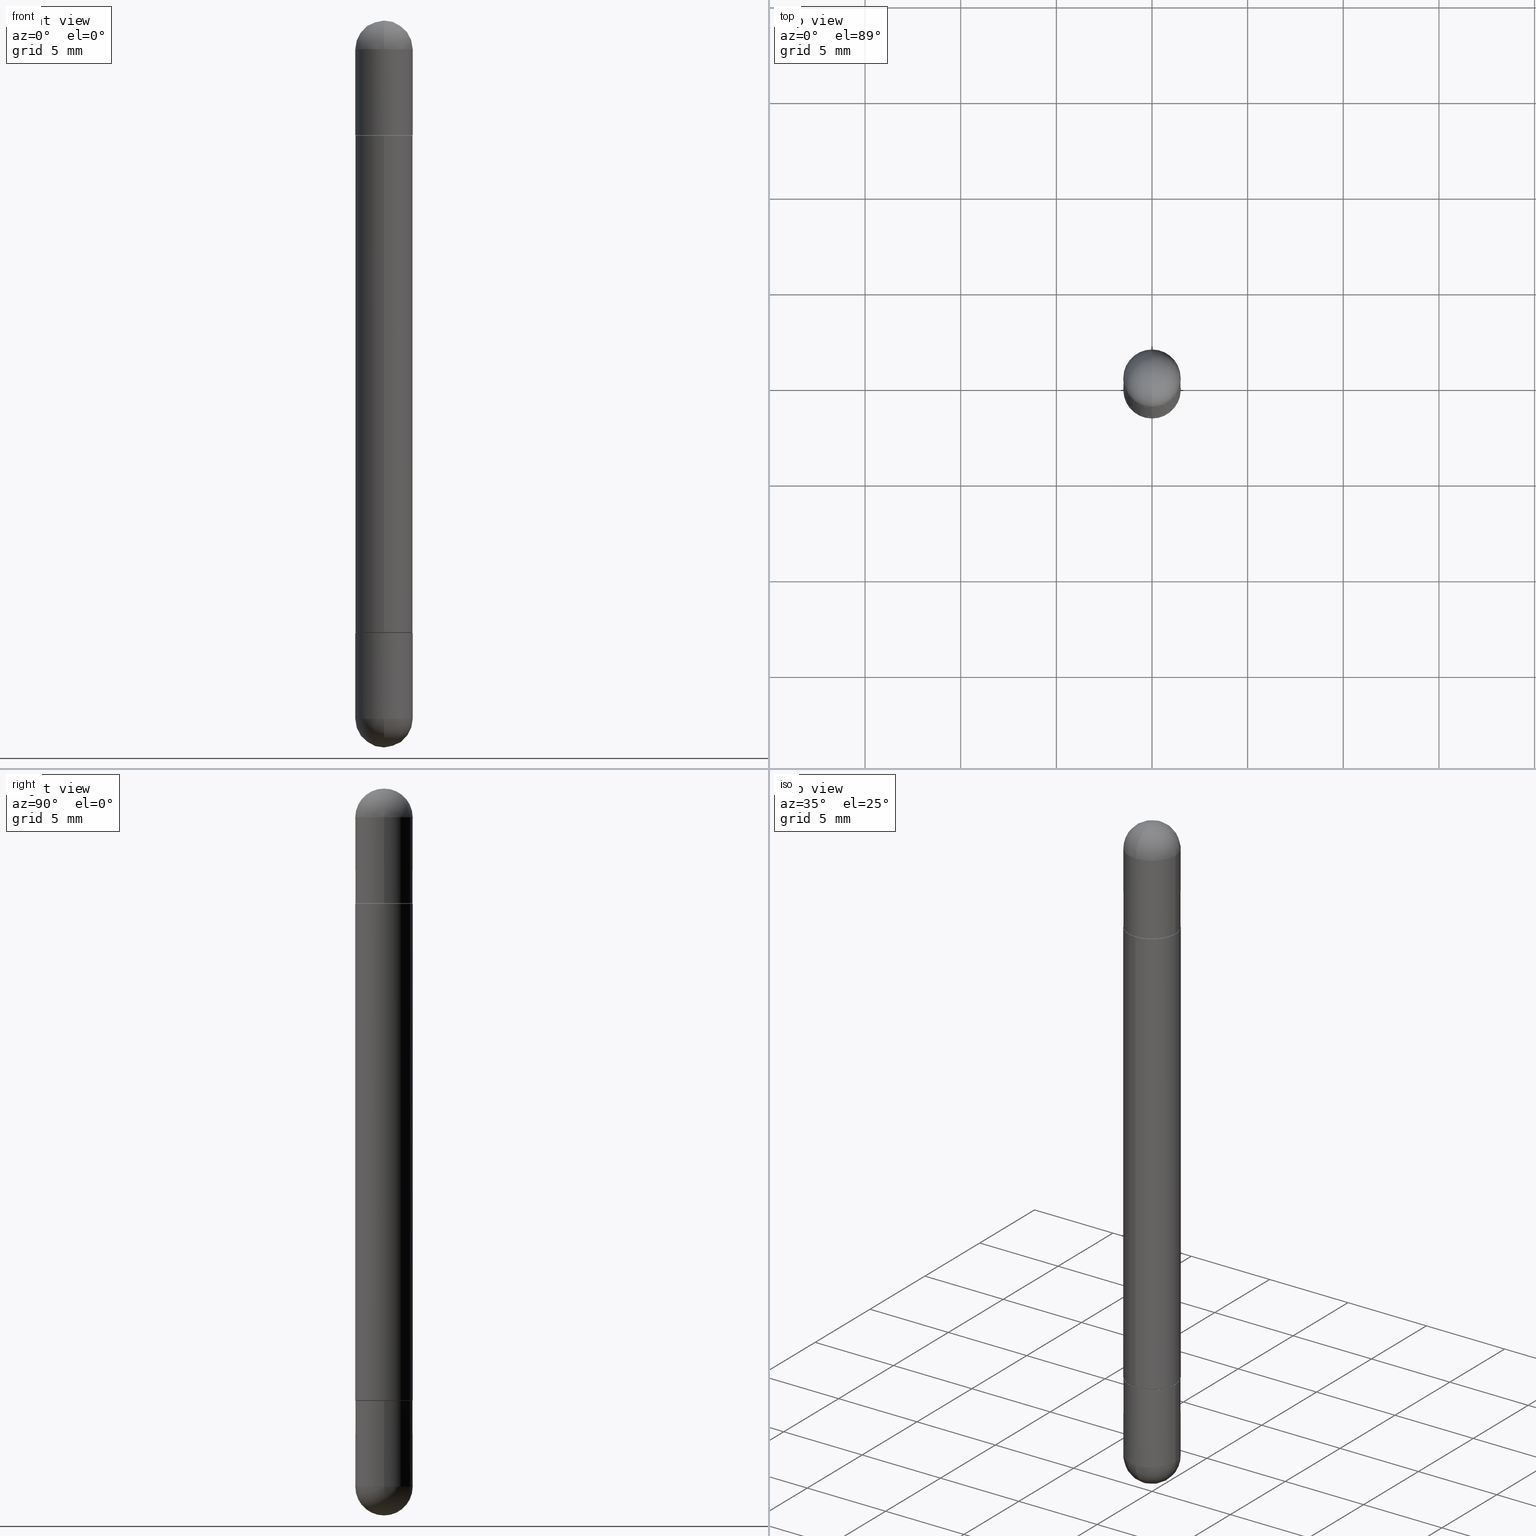
[diagram: canonical four-view strip — front | top / right | iso, engineering-drawing reading convention]
A machine part, canonical four-view strip (front | top / right | iso — engineering-drawing reading convention). The complete STEP part file that produces these views, byte-faithful:
ISO-10303-21;
HEADER;
FILE_DESCRIPTION (( 'STEP AP203' ),
    '1' );
FILE_NAME ('49098.STEP',
    '2024-03-01T12:52:08',
    ( '' ),
    ( '' ),
    'SwSTEP 2.0',
    'SolidWorks 2023',
    '' );
FILE_SCHEMA (( 'CONFIG_CONTROL_DESIGN' ));
ENDSEC;

DATA;
#1 = ORIENTED_EDGE ( 'NONE', *, *, #572, .F. ) ;
#2 = ORIENTED_EDGE ( 'NONE', *, *, #53, .T. ) ;
#3 = CARTESIAN_POINT ( 'NONE',  ( 3.086423063707921793E-29, -4.391217290786669533E-15, -0.2362000000000003264 ) ) ;
#4 = EDGE_LOOP ( 'NONE', ( #5, #637, #101, #326 ) ) ;
#5 = ORIENTED_EDGE ( 'NONE', *, *, #253, .F. ) ;
#6 = CARTESIAN_POINT ( 'NONE',  ( 3.514260947928350449E-29, -5.017433257984542594E-15, -0.05905000000000028976 ) ) ;
#7 = ORIENTED_EDGE ( 'NONE', *, *, #604, .F. ) ;
#8 = DIRECTION ( 'NONE',  ( -2.445468806185136597E-29, 3.491481338843145583E-15, 1.000000000000000000 ) ) ;
#9 = DATE_TIME_ROLE ( 'creation_date' ) ;
#10 = EDGE_LOOP ( 'NONE', ( #192, #484, #132, #392, #664 ) ) ;
#11 = AXIS2_PLACEMENT_3D ( 'NONE', #296, #573, #241 ) ;
#12 = AXIS2_PLACEMENT_3D ( 'NONE', #570, #566, #62 ) ;
#13 = EDGE_CURVE ( 'NONE', #195, #502, #331, .T. ) ;
#14 = CARTESIAN_POINT ( 'NONE',  ( 4.051124067684279981E-16, 0.05904999999999575866, -1.258900000000000352 ) ) ;
#15 = FACE_OUTER_BOUND ( 'NONE', #42, .T. ) ;
#16 = EDGE_CURVE ( 'NONE', #68, #246, #158, .T. ) ;
#17 = PERSON_AND_ORGANIZATION ( #415, #540 ) ;
#18 = DIRECTION ( 'NONE',  ( 1.000000000000000000, -6.982962677686270655E-15, 0.000000000000000000 ) ) ;
#19 = CARTESIAN_POINT ( 'NONE',  ( 4.124700581087690039E-16, 0.05804999999999561899, -1.259900000000000020 ) ) ;
#20 = DIRECTION ( 'NONE',  ( 1.000000000000000000, -6.982962677686266711E-15, 0.000000000000000000 ) ) ;
#21 = DIRECTION ( 'NONE',  ( 2.438088387897960049E-29, -3.491481338843145188E-15, 1.000000000000000000 ) ) ;
#22 = CONICAL_SURFACE ( 'NONE', #11, 0.05805000000000000437, 0.7853981633976190313 ) ;
#23 = AXIS2_PLACEMENT_3D ( 'NONE', #356, #170, #539 ) ;
#24 = DIRECTION ( 'NONE',  ( 2.449736537588635656E-29, -3.485369704569148359E-15, 1.000000000000000000 ) ) ;
#25 = EDGE_CURVE ( 'NONE', #614, #249, #470, .T. ) ;
#26 = CIRCLE ( 'NONE', #666, 0.05905000000000025506 ) ;
#27 = CARTESIAN_POINT ( 'NONE',  ( 0.000000000000000000, 0.000000000000000000, -1.496100000000000207 ) ) ;
#28 = EDGE_CURVE ( 'NONE', #756, #238, #709, .T. ) ;
#29 = ORIENTED_EDGE ( 'NONE', *, *, #263, .F. ) ;
#30 = DIRECTION ( 'NONE',  ( 6.982962677686265922E-15, 1.000000000000000000, -4.626330217890349615E-15 ) ) ;
#31 = DIRECTION ( 'NONE',  ( -1.000000000000000000, 6.982962677686265922E-15, -4.876176775795935793E-29 ) ) ;
#32 = DIRECTION ( 'NONE',  ( -6.982962677686265922E-15, -1.000000000000000000, -4.626330217890363025E-15 ) ) ;
#33 = CARTESIAN_POINT ( 'NONE',  ( -4.053609834396569077E-16, -0.05805000000000438976, -0.2362000000000005484 ) ) ;
#34 = DIRECTION ( 'NONE',  ( -1.000000000000000000, 6.982962677686265922E-15, -4.883557194083112340E-29 ) ) ;
#35 = CARTESIAN_POINT ( 'NONE',  ( 0.05905000000000001914, -5.120519244513884944E-15, -0.05905000000000028976 ) ) ;
#36 = UNCERTAINTY_MEASURE_WITH_UNIT (LENGTH_MEASURE( 1.000000000000000082E-05 ), #179, 'distance_accuracy_value', 'NONE');
#37 = CARTESIAN_POINT ( 'NONE',  ( 3.183141170014464762E-29, -5.491615626124592102E-15, -1.437049999999999939 ) ) ;
#38 = DIRECTION ( 'NONE',  ( -6.982962677686265922E-15, -1.000000000000000000, -3.469747663417768719E-15 ) ) ;
#39 = VERTEX_POINT ( 'NONE', #642 ) ;
#40 = AXIS2_PLACEMENT_3D ( 'NONE', #531, #41, #801 ) ;
#41 = DIRECTION ( 'NONE',  ( -1.000000000000000000, 6.982962677686265922E-15, 4.883557194083112340E-29 ) ) ;
#42 = EDGE_LOOP ( 'NONE', ( #474, #628 ) ) ;
#43 = AXIS2_PLACEMENT_3D ( 'NONE', #97, #355, #289 ) ;
#44 = FACE_OUTER_BOUND ( 'NONE', #190, .T. ) ;
#45 = CARTESIAN_POINT ( 'NONE',  ( 1.832525416943179176E-29, -2.607230807502951739E-15, -0.7480500000000001037 ) ) ;
#46 = CC_DESIGN_PERSON_AND_ORGANIZATION_ASSIGNMENT ( #764, #689, ( #346 ) ) ;
#47 = CARTESIAN_POINT ( 'NONE',  ( 4.160227717875699517E-16, 0.05804999999999561899, -1.259900000000000020 ) ) ;
#48 = DIRECTION ( 'NONE',  ( 1.000000000000000000, -6.982962677686270655E-15, 0.000000000000000000 ) ) ;
#49 = CALENDAR_DATE ( 2024, 1, 3 ) ;
#50 = CARTESIAN_POINT ( 'NONE',  ( 0.000000000000000000, 0.000000000000000000, -0.7480500000000001037 ) ) ;
#51 = DIRECTION ( 'NONE',  ( -0.000000000000000000, -0.000000000000000000, -1.000000000000000000 ) ) ;
#52 = VERTEX_POINT ( 'NONE', #14 ) ;
#53 = EDGE_CURVE ( 'NONE', #208, #308, #108, .T. ) ;
#54 = CARTESIAN_POINT ( 'NONE',  ( -4.195754854663065087E-16, -0.05905000000000539678, -1.437049999999999716 ) ) ;
#55 = CIRCLE ( 'NONE', #622, 0.05905000000000014404 ) ;
#56 = VECTOR ( 'NONE', #714, 39.37007874015748143 ) ;
#57 = APPROVAL_STATUS ( 'not_yet_approved' ) ;
#58 = ORIENTED_EDGE ( 'NONE', *, *, #630, .T. ) ;
#59 = AXIS2_PLACEMENT_3D ( 'NONE', #350, #363, #295 ) ;
#60 = ORIENTED_EDGE ( 'NONE', *, *, #16, .T. ) ;
#61 = EDGE_CURVE ( 'NONE', #260, #323, #216, .T. ) ;
#62 = DIRECTION ( 'NONE',  ( 1.000000000000000000, -6.982962677686270655E-15, 0.000000000000000000 ) ) ;
#63 = VERTEX_POINT ( 'NONE', #89 ) ;
#64 = PRODUCT_RELATED_PRODUCT_CATEGORY ( 'detail', '', ( #127 ) ) ;
#65 = CIRCLE ( 'NONE', #242, 0.05905000000000014404 ) ;
#66 = ORIENTED_EDGE ( 'NONE', *, *, #696, .F. ) ;
#67 = AXIS2_PLACEMENT_3D ( 'NONE', #45, #425, #264 ) ;
#68 = VERTEX_POINT ( 'NONE', #683 ) ;
#69 = VECTOR ( 'NONE', #624, 39.37007874015748143 ) ;
#70 = DIRECTION ( 'NONE',  ( -4.937700262165390546E-15, -0.7071067811866658115, 0.7071067811864292230 ) ) ;
#71 = DIRECTION ( 'NONE',  ( 2.445468806185136597E-29, -3.491481338843145583E-15, 1.000000000000000000 ) ) ;
#72 = DIRECTION ( 'NONE',  ( -6.982962677686266711E-15, -1.000000000000000000, 0.000000000000000000 ) ) ;
#73 = LINE ( 'NONE', #765, #69 ) ;
#74 = COORDINATED_UNIVERSAL_TIME_OFFSET ( 5, 0, .BEHIND. ) ;
#75 = SPHERICAL_SURFACE ( 'NONE', #576, 0.05905000000000025506 ) ;
#76 = EDGE_CURVE ( 'NONE', #181, #323, #173, .T. ) ;
#77 = DIRECTION ( 'NONE',  ( -2.449736537588635656E-29, 3.485369704569148359E-15, 1.000000000000000000 ) ) ;
#78 = DIRECTION ( 'NONE',  ( 6.860497997771530774E-15, 1.000000000000000000, 0.000000000000000000 ) ) ;
#79 = FACE_OUTER_BOUND ( 'NONE', #607, .T. ) ;
#80 = CC_DESIGN_PERSON_AND_ORGANIZATION_ASSIGNMENT ( #815, #759, ( #808 ) ) ;
#81 = DIRECTION ( 'NONE',  ( -6.982962677686265922E-15, -1.000000000000000000, -3.485369704569147964E-15 ) ) ;
#83 = EDGE_CURVE ( 'NONE', #181, #246, #277, .T. ) ;
#82 = AXIS2_PLACEMENT_3D ( 'NONE', #6, #204, #259 ) ;
#84 = AXIS2_PLACEMENT_3D ( 'NONE', #748, #310, #359 ) ;
#85 = DIRECTION ( 'NONE',  ( -6.982962677686265922E-15, -1.000000000000000000, 4.706025828879006204E-15 ) ) ;
#86 = DIRECTION ( 'NONE',  ( -1.000000000000000000, 0.000000000000000000, 0.000000000000000000 ) ) ;
#87 = DIRECTION ( 'NONE',  ( -2.445468806185136597E-29, 3.491481338843145583E-15, 1.000000000000000000 ) ) ;
#88 = AXIS2_PLACEMENT_3D ( 'NONE', #452, #398, #736 ) ;
#89 = CARTESIAN_POINT ( 'NONE',  ( 4.016821577695545181E-16, 0.05804999999999561899, -0.2362000000000001321 ) ) ;
#90 = AXIS2_PLACEMENT_3D ( 'NONE', #731, #348, #48 ) ;
#91 = CARTESIAN_POINT ( 'NONE',  ( 3.514260947928350449E-29, -5.017433257984542594E-15, -0.05905000000000028976 ) ) ;
#92 = SPHERICAL_SURFACE ( 'NONE', #692, 0.05905000000000025506 ) ;
#93 = CYLINDRICAL_SURFACE ( 'NONE', #59, 0.05905000000000001914 ) ;
#94 = CARTESIAN_POINT ( 'NONE',  ( 0.05905000000000001914, -4.123439461173741806E-16, -1.496100000000000207 ) ) ;
#95 = MECHANICAL_CONTEXT ( 'NONE', #239, 'mechanical' ) ;
#96 = CARTESIAN_POINT ( 'NONE',  ( 3.514260947928350449E-29, -5.017433257984542594E-15, -0.05905000000000028976 ) ) ;
#97 = CARTESIAN_POINT ( 'NONE',  ( 3.086423063707921793E-29, -4.391217290786669533E-15, -0.2362000000000003264 ) ) ;
#98 = DIRECTION ( 'NONE',  ( 1.000000000000000000, -6.982962677686270655E-15, 0.000000000000000000 ) ) ;
#99 = FACE_OUTER_BOUND ( 'NONE', #128, .T. ) ;
#100 = VERTEX_POINT ( 'NONE', #105 ) ;
#101 = ORIENTED_EDGE ( 'NONE', *, *, #234, .T. ) ;
#102 = CARTESIAN_POINT ( 'NONE',  ( 3.086423063707921793E-29, -4.391217290786669533E-15, -0.2362000000000003264 ) ) ;
#103 = ORIENTED_EDGE ( 'NONE', *, *, #586, .F. ) ;
#104 = FACE_OUTER_BOUND ( 'NONE', #810, .T. ) ;
#105 = CARTESIAN_POINT ( 'NONE',  ( -4.051124067683763770E-16, -0.05905000000000539678, -0.05905000000000049099 ) ) ;
#106 = EDGE_CURVE ( 'NONE', #39, #332, #564, .T. ) ;
#107 = VECTOR ( 'NONE', #483, 39.37007874015748143 ) ;
#108 = CIRCLE ( 'NONE', #757, 0.05905000000000025506 ) ;
#109 = FACE_OUTER_BOUND ( 'NONE', #629, .T. ) ;
#110 = AXIS2_PLACEMENT_3D ( 'NONE', #352, #610, #742 ) ;
#111 = DIRECTION ( 'NONE',  ( -6.982962677686265922E-15, -1.000000000000000000, -3.529519371659254456E-15 ) ) ;
#112 = AXIS2_PLACEMENT_3D ( 'NONE', #558, #475, #482 ) ;
#113 = DIRECTION ( 'NONE',  ( 1.000000000000000000, -6.982962677686270655E-15, 0.000000000000000000 ) ) ;
#114 = APPLICATION_CONTEXT ( 'configuration controlled 3d designs of mechanical parts and assemblies' ) ;
#115 = LINE ( 'NONE', #617, #728 ) ;
#116 = ORIENTED_EDGE ( 'NONE', *, *, #598, .T. ) ;
#117 = CARTESIAN_POINT ( 'NONE',  ( -4.123439461173500217E-16, -0.05905000000000269061, -0.7480500000000001037 ) ) ;
#118 = CARTESIAN_POINT ( 'NONE',  ( 4.016821577695545181E-16, 0.05804999999999561899, -0.2362000000000001321 ) ) ;
#119 = ORIENTED_EDGE ( 'NONE', *, *, #217, .T. ) ;
#120 = ORIENTED_EDGE ( 'NONE', *, *, #794, .F. ) ;
#121 = ADVANCED_FACE ( 'NONE', ( #183 ), #468, .F. ) ;
#122 = CARTESIAN_POINT ( 'NONE',  ( 0.05905000000000001914, -4.811261284925853162E-15, -0.2362000000000003264 ) ) ;
#123 = AXIS2_PLACEMENT_3D ( 'NONE', #599, #285, #169 ) ;
#124 = AXIS2_PLACEMENT_3D ( 'NONE', #701, #505, #391 ) ;
#125 = FACE_OUTER_BOUND ( 'NONE', #389, .T. ) ;
#126 = EDGE_LOOP ( 'NONE', ( #201, #782, #632, #763, #146 ) ) ;
#127 = PRODUCT ( '49098', '49098', '', ( #95 ) ) ;
#128 = EDGE_LOOP ( 'NONE', ( #1, #375, #762, #362 ) ) ;
#129 = APPROVAL ( #130, 'UNSPECIFIED' ) ;
#130 = APPROVAL_STATUS ( 'not_yet_approved' ) ;
#131 = CARTESIAN_POINT ( 'NONE',  ( 0.000000000000000000, 0.000000000000000000, 0.000000000000000000 ) ) ;
#132 = ORIENTED_EDGE ( 'NONE', *, *, #281, .T. ) ;
#133 = ORIENTED_EDGE ( 'NONE', *, *, #641, .F. ) ;
#134 = DIRECTION ( 'NONE',  ( 4.851104656541791790E-15, 0.7071067811866706965, -0.7071067811864243380 ) ) ;
#135 = CIRCLE ( 'NONE', #589, 0.05905000000000001914 ) ;
#136 = DIRECTION ( 'NONE',  ( -2.449736537588635656E-29, 3.485369704569147964E-15, -1.000000000000000000 ) ) ;
#137 = CARTESIAN_POINT ( 'NONE',  ( -4.053609834396569077E-16, -0.05805000000000438976, -0.2362000000000005484 ) ) ;
#138 = LOCAL_TIME ( 7, 52, 8.000000000000000000, #147 ) ;
#139 = FACE_OUTER_BOUND ( 'NONE', #172, .T. ) ;
#140 = CARTESIAN_POINT ( 'NONE',  ( 3.183141170014464762E-29, -5.491615626124592102E-15, -0.05905000000000028976 ) ) ;
#141 = ORIENTED_EDGE ( 'NONE', *, *, #106, .F. ) ;
#142 = LINE ( 'NONE', #19, #395 ) ;
#143 = ADVANCED_FACE ( 'NONE', ( #164 ), #371, .T. ) ;
#144 = EDGE_CURVE ( 'NONE', #378, #308, #290, .T. ) ;
#145 = LINE ( 'NONE', #399, #56 ) ;
#146 = ORIENTED_EDGE ( 'NONE', *, *, #83, .T. ) ;
#147 = COORDINATED_UNIVERSAL_TIME_OFFSET ( 5, 0, .BEHIND. ) ;
#148 = DIRECTION ( 'NONE',  ( -1.000000000000000000, 6.982962677686265922E-15, 4.876176775795935793E-29 ) ) ;
#149 = AXIS2_PLACEMENT_3D ( 'NONE', #96, #370, #735 ) ;
#150 = ADVANCED_FACE ( 'NONE', ( #609 ), #724, .T. ) ;
#151 = ADVANCED_FACE ( 'NONE', ( #479 ), #282, .F. ) ;
#152 = ADVANCED_FACE ( 'NONE', ( #413 ), #351, .T. ) ;
#153 = AXIS2_PLACEMENT_3D ( 'NONE', #493, #306, #770 ) ;
#154 = ORIENTED_EDGE ( 'NONE', *, *, #494, .F. ) ;
#155 = CARTESIAN_POINT ( 'NONE',  ( 3.183141170014464762E-29, -5.491615626124592102E-15, -0.05905000000000028976 ) ) ;
#156 = ORIENTED_EDGE ( 'NONE', *, *, #630, .F. ) ;
#157 = DIRECTION ( 'NONE',  ( 2.449736537588635656E-29, -3.485369704569148359E-15, 1.000000000000000000 ) ) ;
#158 = CIRCLE ( 'NONE', #225, 0.05905000000000025506 ) ;
#159 = CARTESIAN_POINT ( 'NONE',  ( 3.086423063707921793E-29, -4.391217290786669533E-15, -0.2362000000000003264 ) ) ;
#160 = AXIS2_PLACEMENT_3D ( 'NONE', #605, #739, #685 ) ;
#161 = LOCAL_TIME ( 7, 52, 8.000000000000000000, #615 ) ;
#162 = DIRECTION ( 'NONE',  ( 2.438088387897960049E-29, -3.491481338843145188E-15, -1.000000000000000000 ) ) ;
#163 = ADVANCED_FACE ( 'NONE', ( #533 ), #320, .T. ) ;
#164 = FACE_OUTER_BOUND ( 'NONE', #802, .T. ) ;
#165 = DIRECTION ( 'NONE',  ( -2.445468806185136597E-29, 3.491481338843145583E-15, -1.000000000000000000 ) ) ;
#166 = APPROVAL_STATUS ( 'not_yet_approved' ) ;
#167 = EDGE_CURVE ( 'NONE', #332, #39, #266, .T. ) ;
#168 = FACE_OUTER_BOUND ( 'NONE', #773, .T. ) ;
#169 = DIRECTION ( 'NONE',  ( 6.982962677686265922E-15, 1.000000000000000000, 3.469747663417762014E-15 ) ) ;
#170 = DIRECTION ( 'NONE',  ( -2.449736537588635656E-29, 3.485369704569148359E-15, -1.000000000000000000 ) ) ;
#171 = APPROVAL_ROLE ( '' ) ;
#172 = EDGE_LOOP ( 'NONE', ( #512, #58, #591, #205 ) ) ;
#173 = LINE ( 'NONE', #667, #107 ) ;
#174 = CIRCLE ( 'NONE', #496, 0.05905000000000001914 ) ;
#175 = COORDINATED_UNIVERSAL_TIME_OFFSET ( 5, 0, .BEHIND. ) ;
#176 = ADVANCED_FACE ( 'NONE', ( #44 ), #602, .T. ) ;
#177 = FACE_OUTER_BOUND ( 'NONE', #198, .T. ) ;
#178 = ORIENTED_EDGE ( 'NONE', *, *, #287, .T. ) ;
#179 =( CONVERSION_BASED_UNIT ( 'INCH', #396 ) LENGTH_UNIT ( ) NAMED_UNIT ( #674 ) );
#180 = CARTESIAN_POINT ( 'NONE',  ( 3.183141170014464762E-29, -5.491615626124592102E-15, -0.05905000000000028976 ) ) ;
#181 = VERTEX_POINT ( 'NONE', #538 ) ;
#182 = CC_DESIGN_APPROVAL ( #210, ( #346 ) ) ;
#183 = FACE_OUTER_BOUND ( 'NONE', #284, .T. ) ;
#184 = ADVANCED_FACE ( 'NONE', ( #230 ), #22, .T. ) ;
#185 = DIRECTION ( 'NONE',  ( -6.982962677686265922E-15, -1.000000000000000000, 3.485369704569147964E-15 ) ) ;
#186 = ORIENTED_EDGE ( 'NONE', *, *, #678, .T. ) ;
#187 = PERSON_AND_ORGANIZATION_ROLE ( 'design_owner' ) ;
#188 = VERTEX_POINT ( 'NONE', #33 ) ;
#189 = DIRECTION ( 'NONE',  ( 2.449736537588635656E-29, -3.485369704569148359E-15, 1.000000000000000000 ) ) ;
#190 = EDGE_LOOP ( 'NONE', ( #747, #448, #626, #66 ) ) ;
#191 = AXIS2_PLACEMENT_3D ( 'NONE', #424, #796, #113 ) ;
#192 = ORIENTED_EDGE ( 'NONE', *, *, #367, .F. ) ;
#193 = CIRCLE ( 'NONE', #401, 0.05905000000000008159 ) ;
#194 = DIRECTION ( 'NONE',  ( -6.982962677686265922E-15, -1.000000000000000000, -3.529519371659254456E-15 ) ) ;
#195 = VERTEX_POINT ( 'NONE', #118 ) ;
#196 = CONICAL_SURFACE ( 'NONE', #772, 0.05805000000000000437, 0.7853981633976190313 ) ;
#197 = DATE_AND_TIME ( #569, #652 ) ;
#198 = EDGE_LOOP ( 'NONE', ( #224, #780 ) ) ;
#199 = ADVANCED_FACE ( 'NONE', ( #790 ), #588, .T. ) ;
#200 = EDGE_LOOP ( 'NONE', ( #620, #793 ) ) ;
#201 = ORIENTED_EDGE ( 'NONE', *, *, #696, .T. ) ;
#202 = EDGE_CURVE ( 'NONE', #330, #699, #486, .T. ) ;
#203 = CIRCLE ( 'NONE', #662, 0.05905000000000014404 ) ;
#204 = DIRECTION ( 'NONE',  ( 2.445468806185136597E-29, -3.491481338843145583E-15, 1.000000000000000000 ) ) ;
#205 = ORIENTED_EDGE ( 'NONE', *, *, #144, .T. ) ;
#206 = AXIS2_PLACEMENT_3D ( 'NONE', #579, #647, #78 ) ;
#207 = DIRECTION ( 'NONE',  ( 2.449736537588635656E-29, -3.485369704569148359E-15, 1.000000000000000000 ) ) ;
#208 = VERTEX_POINT ( 'NONE', #774 ) ;
#209 = DIRECTION ( 'NONE',  ( 6.860497997771530774E-15, 1.000000000000000000, 0.000000000000000000 ) ) ;
#210 = APPROVAL ( #166, 'UNSPECIFIED' ) ;
#211 = CARTESIAN_POINT ( 'NONE',  ( 3.982519087706682683E-16, 0.05804999999999561899, -0.2362000000000001321 ) ) ;
#212 = CARTESIAN_POINT ( 'NONE',  ( 0.05905000000000001914, -5.120519244513884944E-15, -0.05905000000000028976 ) ) ;
#213 = DIRECTION ( 'NONE',  ( 5.024295867788919882E-15, 0.7071067811866706965, 0.7071067811864243380 ) ) ;
#214 = ADVANCED_FACE ( 'NONE', ( #517 ), #337, .T. ) ;
#215 = DIRECTION ( 'NONE',  ( -2.449736537588635656E-29, 3.485369704569147964E-15, -1.000000000000000000 ) ) ;
#216 = CIRCLE ( 'NONE', #88, 0.05905000000000001914 ) ;
#217 = EDGE_CURVE ( 'NONE', #431, #52, #65, .T. ) ;
#218 = CIRCLE ( 'NONE', #321, 0.05805000000000000437 ) ;
#219 = DIRECTION ( 'NONE',  ( -2.449736537588635656E-29, 3.485369704569148359E-15, 1.000000000000000000 ) ) ;
#220 = CC_DESIGN_APPROVAL ( #129, ( #808 ) ) ;
#221 = ORIENTED_EDGE ( 'NONE', *, *, #513, .T. ) ;
#222 = DIRECTION ( 'NONE',  ( 2.438088387897960049E-29, -3.491481338843145188E-15, 1.000000000000000000 ) ) ;
#223 = DIRECTION ( 'NONE',  ( -2.445468806185136597E-29, 3.491481338843145583E-15, 1.000000000000000000 ) ) ;
#224 = ORIENTED_EDGE ( 'NONE', *, *, #202, .F. ) ;
#225 = AXIS2_PLACEMENT_3D ( 'NONE', #702, #577, #397 ) ;
#226 = DIRECTION ( 'NONE',  ( -2.449736537588635656E-29, 3.485369704569148359E-15, -1.000000000000000000 ) ) ;
#227 = CIRCLE ( 'NONE', #818, 0.05905000000000001914 ) ;
#228 = CARTESIAN_POINT ( 'NONE',  ( 4.123439461174049462E-16, 0.05904999999999561988, -1.259900000000000020 ) ) ;
#229 = DIRECTION ( 'NONE',  ( 1.000000000000000000, -6.982962677686270655E-15, 0.000000000000000000 ) ) ;
#230 = FACE_OUTER_BOUND ( 'NONE', #445, .T. ) ;
#231 = DIRECTION ( 'NONE',  ( 2.449736537588635656E-29, -3.485369704569148359E-15, 1.000000000000000000 ) ) ;
#232 = ORIENTED_EDGE ( 'NONE', *, *, #13, .F. ) ;
#233 = CARTESIAN_POINT ( 'NONE',  ( 3.183141170014464762E-29, -5.491615626124592102E-15, -1.437049999999999939 ) ) ;
#234 = EDGE_CURVE ( 'NONE', #693, #639, #784, .T. ) ;
#235 = DIRECTION ( 'NONE',  ( 6.982962677686265922E-15, 1.000000000000000000, -4.626330217890349615E-15 ) ) ;
#236 = ORIENTED_EDGE ( 'NONE', *, *, #217, .F. ) ;
#237 = LINE ( 'NONE', #544, #268 ) ;
#238 = VERTEX_POINT ( 'NONE', #718 ) ;
#239 = APPLICATION_CONTEXT ( 'configuration controlled 3d designs of mechanical parts and assemblies' ) ;
#240 = ADVANCED_FACE ( 'NONE', ( #79 ), #511, .F. ) ;
#241 = DIRECTION ( 'NONE',  ( -6.982962677686265922E-15, -1.000000000000000000, -3.529519371659254456E-15 ) ) ;
#242 = AXIS2_PLACEMENT_3D ( 'NONE', #269, #219, #402 ) ;
#243 = ORIENTED_EDGE ( 'NONE', *, *, #712, .F. ) ;
#244 = ORIENTED_EDGE ( 'NONE', *, *, #513, .F. ) ;
#245 = AXIS2_PLACEMENT_3D ( 'NONE', #353, #804, #488 ) ;
#246 = VERTEX_POINT ( 'NONE', #407 ) ;
#247 = DIRECTION ( 'NONE',  ( -6.982962677686265922E-15, -1.000000000000000000, -4.626330217890363025E-15 ) ) ;
#248 =( NAMED_UNIT ( * ) PLANE_ANGLE_UNIT ( ) SI_UNIT ( $, .RADIAN. ) );
#249 = VERTEX_POINT ( 'NONE', #212 ) ;
#250 = SECURITY_CLASSIFICATION_LEVEL ( 'unclassified' ) ;
#251 = MANIFOLD_SOLID_BREP ( 'Mirror4[3]', #650 ) ;
#252 = VECTOR ( 'NONE', #134, 39.37007874015748143 ) ;
#253 = EDGE_CURVE ( 'NONE', #502, #751, #457, .T. ) ;
#254 = CIRCLE ( 'NONE', #366, 0.05805000000000000437 ) ;
#255 = DIRECTION ( 'NONE',  ( 2.445468806185136597E-29, -3.491481338843145583E-15, 1.000000000000000000 ) ) ;
#256 = ORIENTED_EDGE ( 'NONE', *, *, #583, .T. ) ;
#257 = MANIFOLD_SOLID_BREP ( 'Mirror4[4]', #462 ) ;
#258 = CIRCLE ( 'NONE', #414, 0.05905000000000001914 ) ;
#259 = DIRECTION ( 'NONE',  ( 1.000000000000000000, -6.982962677686270655E-15, 0.000000000000000000 ) ) ;
#260 = VERTEX_POINT ( 'NONE', #279 ) ;
#261 = DIRECTION ( 'NONE',  ( 2.445468806185136597E-29, -3.491481338843145583E-15, 1.000000000000000000 ) ) ;
#262 = CARTESIAN_POINT ( 'NONE',  ( 3.083973327170334045E-29, -4.387731921082100675E-15, -0.2372000000000001330 ) ) ;
#263 = EDGE_CURVE ( 'NONE', #700, #439, #203, .T. ) ;
#264 = DIRECTION ( 'NONE',  ( -1.000000000000000000, 0.000000000000000000, 0.000000000000000000 ) ) ;
#265 = MANIFOLD_SOLID_BREP ( 'Combine1', #440 ) ;
#266 = CIRCLE ( 'NONE', #621, 0.05905000000000001914 ) ;
#267 = DIRECTION ( 'NONE',  ( -4.937700262165390546E-15, -0.7071067811866658115, -0.7071067811864292230 ) ) ;
#268 = VECTOR ( 'NONE', #547, 39.37007874015748143 ) ;
#269 = CARTESIAN_POINT ( 'NONE',  ( 3.083973327170334045E-29, -4.387731921082100675E-15, -1.258900000000000130 ) ) ;
#270 = CIRCLE ( 'NONE', #429, 0.05805000000000000437 ) ;
#271 = CARTESIAN_POINT ( 'NONE',  ( -4.051124067683763770E-16, -0.05905000000000539678, -0.05905000000000049099 ) ) ;
#272 = DIRECTION ( 'NONE',  ( -1.000000000000000000, 6.982962677686265922E-15, 4.883557194083112340E-29 ) ) ;
#273 = APPROVAL_ROLE ( '' ) ;
#274 = CARTESIAN_POINT ( 'NONE',  ( 4.051124067684401762E-16, 0.05904999999999747257, -0.7480500000000001037 ) ) ;
#275 = CARTESIAN_POINT ( 'NONE',  ( 3.086423063707921793E-29, -4.391217290786669533E-15, -1.259899999999999798 ) ) ;
#276 = VERTEX_POINT ( 'NONE', #711 ) ;
#277 = CIRCLE ( 'NONE', #791, 0.05905000000000001914 ) ;
#278 = CIRCLE ( 'NONE', #745, 0.05905000000000025506 ) ;
#279 = CARTESIAN_POINT ( 'NONE',  ( -0.05905000000000001914, -4.288599812930171320E-15, -1.259899999999999798 ) ) ;
#280 = CARTESIAN_POINT ( 'NONE',  ( 4.123439461174084467E-16, 0.05904999999999487742, -0.05905000000000008159 ) ) ;
#281 = EDGE_CURVE ( 'NONE', #644, #181, #307, .T. ) ;
#282 = PLANE ( 'NONE',  #495 ) ;
#283 = CARTESIAN_POINT ( 'NONE',  ( 0.05905000000000001914, -4.811261284925853162E-15, -0.2362000000000003264 ) ) ;
#284 = EDGE_LOOP ( 'NONE', ( #256, #178 ) ) ;
#285 = DIRECTION ( 'NONE',  ( 1.000000000000000000, -6.982962677686265922E-15, -4.883557194083112340E-29 ) ) ;
#286 = EDGE_CURVE ( 'NONE', #693, #502, #55, .T. ) ;
#287 = EDGE_CURVE ( 'NONE', #751, #639, #193, .T. ) ;
#288 = CARTESIAN_POINT ( 'NONE',  ( 0.000000000000000000, 0.000000000000000000, -1.496100000000000207 ) ) ;
#289 = DIRECTION ( 'NONE',  ( -6.982962677686265922E-15, -1.000000000000000000, -3.529519371659254456E-15 ) ) ;
#290 = CIRCLE ( 'NONE', #680, 0.05905000000000001914 ) ;
#291 = DIRECTION ( 'NONE',  ( -1.000000000000000000, 6.982962677686265922E-15, -4.883557194083112340E-29 ) ) ;
#292 = AXIS2_PLACEMENT_3D ( 'NONE', #131, #87, #657 ) ;
#293 = CYLINDRICAL_SURFACE ( 'NONE', #23, 0.05905000000000008159 ) ;
#294 = CIRCLE ( 'NONE', #325, 0.05905000000000014404 ) ;
#295 = DIRECTION ( 'NONE',  ( 1.000000000000000000, -6.982962677686266711E-15, 0.000000000000000000 ) ) ;
#296 = CARTESIAN_POINT ( 'NONE',  ( 3.086423063707921793E-29, -4.391217290786669533E-15, -0.2362000000000003264 ) ) ;
#297 = CARTESIAN_POINT ( 'NONE',  ( -4.123439461173441546E-16, -0.05905000000000452248, -0.2372000000000003272 ) ) ;
#298 = ORIENTED_EDGE ( 'NONE', *, *, #347, .T. ) ;
#299 = SPHERICAL_SURFACE ( 'NONE', #715, 0.05905000000000025506 ) ;
#300 = ORIENTED_EDGE ( 'NONE', *, *, #572, .T. ) ;
#301 = DATE_AND_TIME ( #49, #161 ) ;
#302 = CARTESIAN_POINT ( 'NONE',  ( 3.183141170014464762E-29, -5.491615626124592102E-15, -0.05905000000000028976 ) ) ;
#303 = CARTESIAN_POINT ( 'NONE',  ( -4.123439461173441546E-16, -0.05905000000000452248, -0.2372000000000003272 ) ) ;
#304 = ORIENTED_EDGE ( 'NONE', *, *, #494, .T. ) ;
#305 = DIRECTION ( 'NONE',  ( -2.445468806185136877E-29, 3.491481338843145188E-15, -1.000000000000000000 ) ) ;
#306 = DIRECTION ( 'NONE',  ( -2.445468806185136597E-29, 3.491481338843145583E-15, 1.000000000000000000 ) ) ;
#307 = CIRCLE ( 'NONE', #769, 0.05905000000000001914 ) ;
#308 = VERTEX_POINT ( 'NONE', #280 ) ;
#309 = AXIS2_PLACEMENT_3D ( 'NONE', #228, #162, #31 ) ;
#310 = DIRECTION ( 'NONE',  ( -2.445468806185136597E-29, 3.491481338843145583E-15, 1.000000000000000000 ) ) ;
#311 = ORIENTED_EDGE ( 'NONE', *, *, #601, .T. ) ;
#312 = CIRCLE ( 'NONE', #84, 0.05905000000000001914 ) ;
#313 = CARTESIAN_POINT ( 'NONE',  ( 3.183141170014464762E-29, -5.491615626124592102E-15, -0.05905000000000028976 ) ) ;
#314 = ORIENTED_EDGE ( 'NONE', *, *, #335, .F. ) ;
#315 = ADVANCED_FACE ( 'NONE', ( #785 ), #92, .T. ) ;
#316 = ORIENTED_EDGE ( 'NONE', *, *, #28, .T. ) ;
#317 = DIRECTION ( 'NONE',  ( -2.449736537588635656E-29, 3.485369704569148359E-15, -1.000000000000000000 ) ) ;
#318 = VERTEX_POINT ( 'NONE', #283 ) ;
#319 = COORDINATED_UNIVERSAL_TIME_OFFSET ( 5, 0, .BEHIND. ) ;
#320 = CONICAL_SURFACE ( 'NONE', #817, 0.05805000000000000437, 0.7853981633976190313 ) ;
#321 = AXIS2_PLACEMENT_3D ( 'NONE', #102, #157, #111 ) ;
#322 = CARTESIAN_POINT ( 'NONE',  ( 3.081046148912652946E-29, -4.398917338808479031E-15, -0.2362000000000003264 ) ) ;
#323 = VERTEX_POINT ( 'NONE', #529 ) ;
#324 = EDGE_CURVE ( 'NONE', #502, #693, #682, .T. ) ;
#325 = AXIS2_PLACEMENT_3D ( 'NONE', #410, #660, #420 ) ;
#326 = ORIENTED_EDGE ( 'NONE', *, *, #287, .F. ) ;
#327 = ORIENTED_EDGE ( 'NONE', *, *, #106, .T. ) ;
#328 = PLANE ( 'NONE',  #384 ) ;
#329 = DIRECTION ( 'NONE',  ( 1.000000000000000000, -6.982962677686265922E-15, -4.883557194083112340E-29 ) ) ;
#330 = VERTEX_POINT ( 'NONE', #385 ) ;
#331 = LINE ( 'NONE', #211, #252 ) ;
#332 = VERTEX_POINT ( 'NONE', #122 ) ;
#333 = PERSON_AND_ORGANIZATION ( #415, #540 ) ;
#334 = DIRECTION ( 'NONE',  ( -2.449736537588635656E-29, 3.485369704569147964E-15, -1.000000000000000000 ) ) ;
#335 = EDGE_CURVE ( 'NONE', #249, #490, #663, .T. ) ;
#336 = ORIENTED_EDGE ( 'NONE', *, *, #541, .T. ) ;
#337 = CYLINDRICAL_SURFACE ( 'NONE', #521, 0.05905000000000001914 ) ;
#338 = PERSON_AND_ORGANIZATION_ROLE ( 'creator' ) ;
#339 = ORIENTED_EDGE ( 'NONE', *, *, #678, .F. ) ;
#340 = AXIS2_PLACEMENT_3D ( 'NONE', #776, #222, #148 ) ;
#341 = EDGE_CURVE ( 'NONE', #276, #490, #758, .T. ) ;
#342 = CIRCLE ( 'NONE', #206, 0.05905000000000025506 ) ;
#343 = FACE_OUTER_BOUND ( 'NONE', #480, .T. ) ;
#344 = DIRECTION ( 'NONE',  ( 1.000000000000000000, -6.982962677686270655E-15, 0.000000000000000000 ) ) ;
#345 = AXIS2_PLACEMENT_3D ( 'NONE', #434, #427, #185 ) ;
#346 = PRODUCT_DEFINITION_FORMATION_WITH_SPECIFIED_SOURCE ( 'ANY', '', #127, .NOT_KNOWN. ) ;
#347 = EDGE_CURVE ( 'NONE', #63, #439, #237, .T. ) ;
#348 = DIRECTION ( 'NONE',  ( 2.445468806185136597E-29, -3.491481338843145583E-15, 1.000000000000000000 ) ) ;
#349 = EDGE_CURVE ( 'NONE', #188, #195, #218, .T. ) ;
#350 = CARTESIAN_POINT ( 'NONE',  ( 0.000000000000000000, 0.000000000000000000, -1.496100000000000207 ) ) ;
#351 = SPHERICAL_SURFACE ( 'NONE', #123, 0.05905000000000025506 ) ;
#352 = CARTESIAN_POINT ( 'NONE',  ( 3.514260947928350449E-29, -5.017433257984542594E-15, -0.05905000000000028976 ) ) ;
#353 = CARTESIAN_POINT ( 'NONE',  ( 0.000000000000000000, 0.000000000000000000, -1.496100000000000207 ) ) ;
#354 = DIRECTION ( 'NONE',  ( -2.449736537588635656E-29, 3.485369704569147964E-15, -1.000000000000000000 ) ) ;
#355 = DIRECTION ( 'NONE',  ( -2.449736537588635656E-29, 3.485369704569148359E-15, -1.000000000000000000 ) ) ;
#356 = CARTESIAN_POINT ( 'NONE',  ( 0.000000000000000000, 0.000000000000000000, -1.496100000000000207 ) ) ;
#357 = ADVANCED_FACE ( 'NONE', ( #746 ), #597, .F. ) ;
#358 = ORIENTED_EDGE ( 'NONE', *, *, #324, .F. ) ;
#359 = DIRECTION ( 'NONE',  ( 1.000000000000000000, -6.982962677686270655E-15, 0.000000000000000000 ) ) ;
#360 = DIRECTION ( 'NONE',  ( -6.982962677686265922E-15, -1.000000000000000000, -3.469747663417768719E-15 ) ) ;
#361 = CARTESIAN_POINT ( 'NONE',  ( -0.05905000000000001914, -4.303062891628101254E-15, -0.05905000000000028976 ) ) ;
#362 = ORIENTED_EDGE ( 'NONE', *, *, #613, .F. ) ;
#363 = DIRECTION ( 'NONE',  ( -2.445468806185136597E-29, 3.491481338843145583E-15, -1.000000000000000000 ) ) ;
#364 = AXIS2_PLACEMENT_3D ( 'NONE', #50, #677, #365 ) ;
#365 = DIRECTION ( 'NONE',  ( -1.000000000000000000, 0.000000000000000000, 0.000000000000000000 ) ) ;
#366 = AXIS2_PLACEMENT_3D ( 'NONE', #3, #189, #194 ) ;
#367 = EDGE_CURVE ( 'NONE', #553, #260, #476, .T. ) ;
#368 = CYLINDRICAL_SURFACE ( 'NONE', #245, 0.05905000000000008159 ) ;
#369 = VERTEX_POINT ( 'NONE', #361 ) ;
#370 = DIRECTION ( 'NONE',  ( 2.445468806185136597E-29, -3.491481338843145583E-15, 1.000000000000000000 ) ) ;
#371 = SPHERICAL_SURFACE ( 'NONE', #400, 0.05905000000000025506 ) ;
#372 = ORIENTED_EDGE ( 'NONE', *, *, #379, .T. ) ;
#373 = CARTESIAN_POINT ( 'NONE',  ( 1.832525416943179176E-29, -2.607230807502951739E-15, -0.7480500000000001037 ) ) ;
#374 = EDGE_LOOP ( 'NONE', ( #722, #311, #236, #388 ) ) ;
#375 = ORIENTED_EDGE ( 'NONE', *, *, #409, .T. ) ;
#376 = LINE ( 'NONE', #619, #783 ) ;
#377 = LINE ( 'NONE', #545, #606 ) ;
#378 = VERTEX_POINT ( 'NONE', #35 ) ;
#379 = EDGE_CURVE ( 'NONE', #490, #369, #771, .T. ) ;
#380 = AXIS2_PLACEMENT_3D ( 'NONE', #37, #291, #235 ) ;
#381 = CIRCLE ( 'NONE', #12, 0.05905000000000001914 ) ;
#382 = CARTESIAN_POINT ( 'NONE',  ( 3.081046148912652946E-29, -4.398917338808479031E-15, -0.2362000000000003264 ) ) ;
#383 = ORIENTED_EDGE ( 'NONE', *, *, #411, .T. ) ;
#384 = AXIS2_PLACEMENT_3D ( 'NONE', #406, #21, #454 ) ;
#385 = CARTESIAN_POINT ( 'NONE',  ( -4.053609834396569077E-16, -0.05805000000000438976, -1.259899999999999576 ) ) ;
#386 = ADVANCED_FACE ( 'NONE', ( #168 ), #299, .T. ) ;
#387 = DIRECTION ( 'NONE',  ( 6.982962677686265922E-15, 1.000000000000000000, 3.469747663417762014E-15 ) ) ;
#388 = ORIENTED_EDGE ( 'NONE', *, *, #443, .F. ) ;
#389 = EDGE_LOOP ( 'NONE', ( #767, #103, #584, #786 ) ) ;
#390 = APPROVAL_ROLE ( '' ) ;
#391 = DIRECTION ( 'NONE',  ( -6.982962677686265922E-15, -1.000000000000000000, -3.529519371659254456E-15 ) ) ;
#392 = ORIENTED_EDGE ( 'NONE', *, *, #76, .T. ) ;
#393 = AXIS2_PLACEMENT_3D ( 'NONE', #27, #226, #32 ) ;
#394 = APPROVAL ( #57, 'UNSPECIFIED' ) ;
#395 = VECTOR ( 'NONE', #213, 39.37007874015748143 ) ;
#396 = LENGTH_MEASURE_WITH_UNIT ( LENGTH_MEASURE( 0.02539999999999999897 ), #694 );
#397 = DIRECTION ( 'NONE',  ( 6.982962677686266711E-15, 1.000000000000000000, 0.000000000000000000 ) ) ;
#398 = DIRECTION ( 'NONE',  ( -2.445468806185136597E-29, 3.491481338843145583E-15, 1.000000000000000000 ) ) ;
#399 = CARTESIAN_POINT ( 'NONE',  ( -4.123439461173745750E-16, -0.05905000000000008159, -1.496100000000000430 ) ) ;
#400 = AXIS2_PLACEMENT_3D ( 'NONE', #302, #548, #661 ) ;
#401 = AXIS2_PLACEMENT_3D ( 'NONE', #373, #51, #86 ) ;
#402 = DIRECTION ( 'NONE',  ( -6.982962677686265922E-15, -1.000000000000000000, 4.626330217890358292E-15 ) ) ;
#403 = EDGE_CURVE ( 'NONE', #323, #260, #508, .T. ) ;
#404 = AXIS2_PLACEMENT_3D ( 'NONE', #673, #477, #723 ) ;
#405 = DIRECTION ( 'NONE',  ( 2.449736537588635656E-29, -3.485369704569148359E-15, 1.000000000000000000 ) ) ;
#406 = CARTESIAN_POINT ( 'NONE',  ( 4.123439461174049462E-16, 0.05904999999999561988, -0.2362000000000000766 ) ) ;
#407 = CARTESIAN_POINT ( 'NONE',  ( 4.123439461174084467E-16, 0.05904999999999487742, -1.437050000000000161 ) ) ;
#408 = APPROVAL_DATE_TIME ( #301, #129 ) ;
#409 = EDGE_CURVE ( 'NONE', #439, #52, #115, .T. ) ;
#410 = CARTESIAN_POINT ( 'NONE',  ( 3.083973327170334045E-29, -4.387731921082100675E-15, -1.258900000000000130 ) ) ;
#411 = EDGE_CURVE ( 'NONE', #238, #318, #174, .T. ) ;
#412 = CIRCLE ( 'NONE', #67, 0.05905000000000008159 ) ;
#413 = FACE_OUTER_BOUND ( 'NONE', #563, .T. ) ;
#414 = AXIS2_PLACEMENT_3D ( 'NONE', #518, #777, #229 ) ;
#415 = PERSON ( 'UNSPECIFIED', 'UNSPECIFIED', 'UNSPECIFIED', ('UNSPECIFIED'), ('UNSPECIFIED'), ('UNSPECIFIED') ) ;
#416 = CARTESIAN_POINT ( 'NONE',  ( 3.081046148912652946E-29, -4.398917338808479031E-15, -0.2362000000000003264 ) ) ;
#417 = EDGE_CURVE ( 'NONE', #708, #700, #377, .T. ) ;
#418 = EDGE_LOOP ( 'NONE', ( #504, #690 ) ) ;
#419 = DIRECTION ( 'NONE',  ( -6.982962677686265922E-15, -1.000000000000000000, -3.529519371659254456E-15 ) ) ;
#420 = DIRECTION ( 'NONE',  ( -6.982962677686265922E-15, -1.000000000000000000, 4.626330217890358292E-15 ) ) ;
#421 = DIRECTION ( 'NONE',  ( 2.445468806185136597E-29, -3.491481338843145583E-15, 1.000000000000000000 ) ) ;
#422 = DIRECTION ( 'NONE',  ( -4.937700262165390546E-15, -0.7071067811866658115, -0.7071067811864292230 ) ) ;
#423 = AXIS2_PLACEMENT_3D ( 'NONE', #473, #231, #38 ) ;
#424 = CARTESIAN_POINT ( 'NONE',  ( 3.081046148912652946E-29, -4.398917338808479031E-15, -0.2362000000000003264 ) ) ;
#425 = DIRECTION ( 'NONE',  ( -0.000000000000000000, -0.000000000000000000, -1.000000000000000000 ) ) ;
#426 = CALENDAR_DATE ( 2024, 1, 3 ) ;
#427 = DIRECTION ( 'NONE',  ( -2.449736537588635656E-29, 3.485369704569147964E-15, 1.000000000000000000 ) ) ;
#428 = ORIENTED_EDGE ( 'NONE', *, *, #598, .F. ) ;
#429 = AXIS2_PLACEMENT_3D ( 'NONE', #275, #519, #555 ) ;
#430 = DIRECTION ( 'NONE',  ( 6.982962677686265922E-15, 1.000000000000000000, 3.469747663417762014E-15 ) ) ;
#431 = VERTEX_POINT ( 'NONE', #616 ) ;
#432 = ORIENTED_EDGE ( 'NONE', *, *, #281, .F. ) ;
#433 = APPROVAL_DATE_TIME ( #549, #210 ) ;
#434 = CARTESIAN_POINT ( 'NONE',  ( 3.086423063707921793E-29, -4.391217290786669533E-15, -1.259899999999999798 ) ) ;
#435 = APPLICATION_PROTOCOL_DEFINITION ( 'international standard', 'config_control_design', 1994, #114 ) ;
#436 = ORIENTED_EDGE ( 'NONE', *, *, #641, .T. ) ;
#437 = DIRECTION ( 'NONE',  ( -6.982962677686265922E-15, -1.000000000000000000, -3.529519371659254456E-15 ) ) ;
#438 = EDGE_CURVE ( 'NONE', #553, #644, #381, .T. ) ;
#439 = VERTEX_POINT ( 'NONE', #447 ) ;
#440 = CLOSED_SHELL ( 'NONE', ( #163, #581, #654, #151, #456, #150, #199, #703 ) ) ;
#441 = DIRECTION ( 'NONE',  ( -1.000000000000000000, 7.105427357601001070E-15, -4.926315508542082329E-29 ) ) ;
#442 = ORIENTED_EDGE ( 'NONE', *, *, #613, .T. ) ;
#443 = EDGE_CURVE ( 'NONE', #330, #431, #698, .T. ) ;
#444 = PERSON_AND_ORGANIZATION ( #415, #540 ) ;
#445 = EDGE_LOOP ( 'NONE', ( #811, #516, #707, #244 ) ) ;
#446 = CC_DESIGN_PERSON_AND_ORGANIZATION_ASSIGNMENT ( #750, #187, ( #127 ) ) ;
#447 = CARTESIAN_POINT ( 'NONE',  ( 4.051124067684407678E-16, 0.05904999999999576560, -0.2371999999999999387 ) ) ;
#448 = ORIENTED_EDGE ( 'NONE', *, *, #813, .T. ) ;
#449 = EDGE_LOOP ( 'NONE', ( #744, #60, #535, #432 ) ) ;
#450 = AXIS2_PLACEMENT_3D ( 'NONE', #706, #261, #571 ) ;
#451 = AXIS2_PLACEMENT_3D ( 'NONE', #645, #317, #247 ) ;
#452 = CARTESIAN_POINT ( 'NONE',  ( 3.081046148912652946E-29, -4.398917338808479031E-15, -1.259899999999999798 ) ) ;
#453 = CIRCLE ( 'NONE', #500, 0.05805000000000000437 ) ;
#454 = DIRECTION ( 'NONE',  ( -1.000000000000000000, 6.982962677686265922E-15, 4.876176775795935793E-29 ) ) ;
#455 = DIRECTION ( 'NONE',  ( 1.000000000000000000, -6.982962677686270655E-15, 0.000000000000000000 ) ) ;
#456 = ADVANCED_FACE ( 'NONE', ( #125 ), #487, .T. ) ;
#457 = LINE ( 'NONE', #582, #554 ) ;
#458 = EDGE_CURVE ( 'NONE', #308, #756, #781, .T. ) ;
#459 = CALENDAR_DATE ( 2024, 1, 3 ) ;
#460 = DIRECTION ( 'NONE',  ( -6.982962677686265922E-15, -1.000000000000000000, -3.469747663417768719E-15 ) ) ;
#461 = CARTESIAN_POINT ( 'NONE',  ( 3.086423063707921793E-29, -4.391217290786669533E-15, -0.2362000000000003264 ) ) ;
#462 = CLOSED_SHELL ( 'NONE', ( #778, #491, #152, #240, #574 ) ) ;
#463 = CARTESIAN_POINT ( 'NONE',  ( 3.086423063707921793E-29, -4.391217290786669533E-15, -1.259899999999999798 ) ) ;
#464 = CARTESIAN_POINT ( 'NONE',  ( 3.514260947928350449E-29, -5.017433257984542594E-15, -1.437049999999999939 ) ) ;
#465 = DESIGN_CONTEXT ( 'detailed design', #114, 'design' ) ;
#466 = CARTESIAN_POINT ( 'NONE',  ( 3.086423063707921793E-29, -4.391217290786669533E-15, -0.2362000000000003264 ) ) ;
#467 = EDGE_LOOP ( 'NONE', ( #120, #298, #300, #740 ) ) ;
#468 = PLANE ( 'NONE',  #364 ) ;
#469 = DIRECTION ( 'NONE',  ( 2.449736537588635656E-29, -3.485369704569148359E-15, 1.000000000000000000 ) ) ;
#470 = CIRCLE ( 'NONE', #450, 0.05905000000000001914 ) ;
#471 = VECTOR ( 'NONE', #70, 39.37007874015748143 ) ;
#472 = CARTESIAN_POINT ( 'NONE',  ( 3.086423063707921793E-29, -4.391217290786669533E-15, -1.259899999999999798 ) ) ;
#473 = CARTESIAN_POINT ( 'NONE',  ( 3.083973327170334045E-29, -4.387731921082100675E-15, -0.2372000000000001330 ) ) ;
#474 = ORIENTED_EDGE ( 'NONE', *, *, #349, .T. ) ;
#475 = DIRECTION ( 'NONE',  ( 0.000000000000000000, 0.000000000000000000, 1.000000000000000000 ) ) ;
#476 = LINE ( 'NONE', #552, #651 ) ;
#477 = DIRECTION ( 'NONE',  ( -2.445468806185136597E-29, 3.491481338843145583E-15, -1.000000000000000000 ) ) ;
#478 = EDGE_CURVE ( 'NONE', #195, #188, #254, .T. ) ;
#479 = FACE_OUTER_BOUND ( 'NONE', #418, .T. ) ;
#480 = EDGE_LOOP ( 'NONE', ( #492, #316, #383, #339, #640 ) ) ;
#481 = PRODUCT_DEFINITION ( 'UNKNOWN', '', #346, #465 ) ;
#482 = DIRECTION ( 'NONE',  ( 1.000000000000000000, 0.000000000000000000, 0.000000000000000000 ) ) ;
#483 = DIRECTION ( 'NONE',  ( -2.445468806185136877E-29, 3.491481338843145188E-15, 1.000000000000000000 ) ) ;
#484 = ORIENTED_EDGE ( 'NONE', *, *, #438, .T. ) ;
#485 = EDGE_LOOP ( 'NONE', ( #567, #716, #809, #543 ) ) ;
#486 = CIRCLE ( 'NONE', #713, 0.05805000000000000437 ) ;
#487 = CONICAL_SURFACE ( 'NONE', #124, 0.05805000000000000437, 0.7853981633976190313 ) ;
#488 = DIRECTION ( 'NONE',  ( -6.982962677686265922E-15, -1.000000000000000000, -4.626330217890363025E-15 ) ) ;
#489 = CC_DESIGN_PERSON_AND_ORGANIZATION_ASSIGNMENT ( #333, #338, ( #481 ) ) ;
#490 = VERTEX_POINT ( 'NONE', #635 ) ;
#491 = ADVANCED_FACE ( 'NONE', ( #139 ), #75, .T. ) ;
#492 = ORIENTED_EDGE ( 'NONE', *, *, #541, .F. ) ;
#493 = CARTESIAN_POINT ( 'NONE',  ( 0.000000000000000000, 0.000000000000000000, 0.000000000000000000 ) ) ;
#494 = EDGE_CURVE ( 'NONE', #318, #238, #227, .T. ) ;
#495 = AXIS2_PLACEMENT_3D ( 'NONE', #159, #546, #528 ) ;
#496 = AXIS2_PLACEMENT_3D ( 'NONE', #322, #71, #753 ) ;
#497 = FACE_OUTER_BOUND ( 'NONE', #10, .T. ) ;
#498 = ADVANCED_FACE ( 'NONE', ( #627 ), #503, .T. ) ;
#499 = ORIENTED_EDGE ( 'NONE', *, *, #25, .F. ) ;
#500 = AXIS2_PLACEMENT_3D ( 'NONE', #608, #665, #419 ) ;
#501 = PERSON_AND_ORGANIZATION_ROLE ( 'design_supplier' ) ;
#502 = VERTEX_POINT ( 'NONE', #562 ) ;
#503 = CYLINDRICAL_SURFACE ( 'NONE', #451, 0.05905000000000008159 ) ;
#504 = ORIENTED_EDGE ( 'NONE', *, *, #586, .T. ) ;
#505 = DIRECTION ( 'NONE',  ( -2.449736537588635656E-29, 3.485369704569148359E-15, -1.000000000000000000 ) ) ;
#506 = EDGE_LOOP ( 'NONE', ( #523, #29, #442, #119 ) ) ;
#507 = ADVANCED_FACE ( 'NONE', ( #497 ), #761, .T. ) ;
#508 = CIRCLE ( 'NONE', #160, 0.05905000000000001914 ) ;
#509 = EDGE_LOOP ( 'NONE', ( #232, #754, #221, #710 ) ) ;
#510 = LOCAL_TIME ( 7, 52, 8.000000000000000000, #175 ) ;
#511 = PLANE ( 'NONE',  #340 ) ;
#512 = ORIENTED_EDGE ( 'NONE', *, *, #53, .F. ) ;
#513 = EDGE_CURVE ( 'NONE', #188, #693, #658, .T. ) ;
#514 = MANIFOLD_SOLID_BREP ( 'Body-Move/Copy2[1]', #726 ) ;
#515 = EDGE_LOOP ( 'NONE', ( #749, #551, #760, #186, #304 ) ) ;
#516 = ORIENTED_EDGE ( 'NONE', *, *, #13, .T. ) ;
#517 = FACE_OUTER_BOUND ( 'NONE', #814, .T. ) ;
#518 = CARTESIAN_POINT ( 'NONE',  ( 3.514260947928350449E-29, -5.017433257984542594E-15, -0.05905000000000028976 ) ) ;
#519 = DIRECTION ( 'NONE',  ( -2.449736537588635656E-29, 3.485369704569148359E-15, 1.000000000000000000 ) ) ;
#520 = CARTESIAN_POINT ( 'NONE',  ( 3.083973327170334045E-29, -4.387731921082100675E-15, -0.2372000000000001330 ) ) ;
#521 = AXIS2_PLACEMENT_3D ( 'NONE', #524, #587, #20 ) ;
#522 = AXIS2_PLACEMENT_3D ( 'NONE', #288, #165, #671 ) ;
#523 = ORIENTED_EDGE ( 'NONE', *, *, #409, .F. ) ;
#524 = CARTESIAN_POINT ( 'NONE',  ( 0.000000000000000000, 0.000000000000000000, -1.496100000000000207 ) ) ;
#525 = CC_DESIGN_APPROVAL ( #394, ( #481 ) ) ;
#526 = DATE_AND_TIME ( #580, #684 ) ;
#527 = CARTESIAN_POINT ( 'NONE',  ( -0.05905000000000001914, -4.303062891628101254E-15, -0.05905000000000028976 ) ) ;
#528 = DIRECTION ( 'NONE',  ( -6.982962677686265922E-15, -1.000000000000000000, -3.485369704569147964E-15 ) ) ;
#529 = CARTESIAN_POINT ( 'NONE',  ( 0.05905000000000001914, -4.811261284925853162E-15, -1.259899999999999798 ) ) ;
#530 = ORIENTED_EDGE ( 'NONE', *, *, #25, .T. ) ;
#531 = CARTESIAN_POINT ( 'NONE',  ( 3.183141170014464762E-29, -5.491615626124592102E-15, -0.05905000000000028976 ) ) ;
#532 = SHAPE_DEFINITION_REPRESENTATION ( #730, #675 ) ;
#533 = FACE_OUTER_BOUND ( 'NONE', #374, .T. ) ;
#534 = LINE ( 'NONE', #94, #732 ) ;
#535 = ORIENTED_EDGE ( 'NONE', *, *, #83, .F. ) ;
#536 =( NAMED_UNIT ( * ) SI_UNIT ( $, .STERADIAN. ) SOLID_ANGLE_UNIT ( ) );
#537 = CIRCLE ( 'NONE', #110, 0.05905000000000001914 ) ;
#538 = CARTESIAN_POINT ( 'NONE',  ( 0.05905000000000001914, -5.120519244513884944E-15, -1.437049999999999939 ) ) ;
#539 = DIRECTION ( 'NONE',  ( -6.982962677686265922E-15, -1.000000000000000000, -4.626330217890363025E-15 ) ) ;
#540 = ORGANIZATION ( 'UNSPECIFIED', 'UNSPECIFIED', '' ) ;
#541 = EDGE_CURVE ( 'NONE', #756, #100, #537, .T. ) ;
#542 = CARTESIAN_POINT ( 'NONE',  ( 3.086423063707921793E-29, -4.391217290786669533E-15, -0.2362000000000003264 ) ) ;
#543 = ORIENTED_EDGE ( 'NONE', *, *, #721, .F. ) ;
#544 = CARTESIAN_POINT ( 'NONE',  ( 3.982519087706682683E-16, 0.05804999999999561899, -0.2362000000000001321 ) ) ;
#545 = CARTESIAN_POINT ( 'NONE',  ( -4.053609834396569077E-16, -0.05805000000000438976, -0.2362000000000005484 ) ) ;
#546 = DIRECTION ( 'NONE',  ( -2.449736537588635656E-29, 3.485369704569147964E-15, -1.000000000000000000 ) ) ;
#547 = DIRECTION ( 'NONE',  ( 4.851104656541791790E-15, 0.7071067811866706965, -0.7071067811864243380 ) ) ;
#548 = DIRECTION ( 'NONE',  ( 1.000000000000000000, -6.982962677686265922E-15, -4.883557194083112340E-29 ) ) ;
#549 = DATE_AND_TIME ( #426, #510 ) ;
#550 = FACE_OUTER_BOUND ( 'NONE', #467, .T. ) ;
#551 = ORIENTED_EDGE ( 'NONE', *, *, #458, .F. ) ;
#552 = CARTESIAN_POINT ( 'NONE',  ( -0.05905000000000001914, 4.195754854663392958E-16, -2.904631170795522943E-30 ) ) ;
#553 = VERTEX_POINT ( 'NONE', #600 ) ;
#554 = VECTOR ( 'NONE', #215, 39.37007874015748143 ) ;
#555 = DIRECTION ( 'NONE',  ( -6.982962677686265922E-15, -1.000000000000000000, 4.706025828879006204E-15 ) ) ;
#556 = AXIS2_PLACEMENT_3D ( 'NONE', #788, #469, #725 ) ;
#557 = CONICAL_SURFACE ( 'NONE', #43, 0.05805000000000000437, 0.7853981633976190313 ) ;
#558 = CARTESIAN_POINT ( 'NONE',  ( 0.000000000000000000, 0.000000000000000000, 0.000000000000000000 ) ) ;
#559 = EDGE_LOOP ( 'NONE', ( #775, #141 ) ) ;
#560 = CARTESIAN_POINT ( 'NONE',  ( 3.086423063707921793E-29, -4.391217290786669533E-15, -1.259899999999999798 ) ) ;
#561 = ORIENTED_EDGE ( 'NONE', *, *, #379, .F. ) ;
#562 = CARTESIAN_POINT ( 'NONE',  ( 4.051124067684407678E-16, 0.05904999999999576560, -0.2371999999999999387 ) ) ;
#563 = EDGE_LOOP ( 'NONE', ( #156, #2, #695, #336 ) ) ;
#564 = CIRCLE ( 'NONE', #191, 0.05905000000000001914 ) ;
#565 = CIRCLE ( 'NONE', #423, 0.05905000000000014404 ) ;
#566 = DIRECTION ( 'NONE',  ( -2.445468806185136597E-29, 3.491481338843145583E-15, 1.000000000000000000 ) ) ;
#567 = ORIENTED_EDGE ( 'NONE', *, *, #601, .F. ) ;
#568 = APPROVAL_PERSON_ORGANIZATION ( #17, #210, #171 ) ;
#569 = CALENDAR_DATE ( 2024, 1, 3 ) ;
#570 = CARTESIAN_POINT ( 'NONE',  ( 3.514260947928350449E-29, -5.017433257984542594E-15, -1.437049999999999939 ) ) ;
#571 = DIRECTION ( 'NONE',  ( 1.000000000000000000, -6.982962677686270655E-15, 0.000000000000000000 ) ) ;
#572 = EDGE_CURVE ( 'NONE', #439, #700, #565, .T. ) ;
#573 = DIRECTION ( 'NONE',  ( -2.449736537588635656E-29, 3.485369704569148359E-15, -1.000000000000000000 ) ) ;
#574 = ADVANCED_FACE ( 'NONE', ( #737 ), #734, .T. ) ;
#575 = AXIS2_PLACEMENT_3D ( 'NONE', #560, #77, #779 ) ;
#576 = AXIS2_PLACEMENT_3D ( 'NONE', #313, #329, #387 ) ;
#577 = DIRECTION ( 'NONE',  ( 1.000000000000000000, -6.982962677686265922E-15, 4.883557194083112340E-29 ) ) ;
#578 = FACE_OUTER_BOUND ( 'NONE', #559, .T. ) ;
#579 = CARTESIAN_POINT ( 'NONE',  ( 3.183141170014464762E-29, -5.491615626124592102E-15, -0.05905000000000028976 ) ) ;
#580 = CALENDAR_DATE ( 2024, 1, 3 ) ;
#581 = ADVANCED_FACE ( 'NONE', ( #99 ), #293, .T. ) ;
#582 = CARTESIAN_POINT ( 'NONE',  ( 4.051124067684094599E-16, 0.05905000000000008159, -1.496099999999999985 ) ) ;
#583 = EDGE_CURVE ( 'NONE', #639, #751, #412, .T. ) ;
#584 = ORIENTED_EDGE ( 'NONE', *, *, #417, .T. ) ;
#585 = DATE_AND_TIME ( #459, #138 ) ;
#586 = EDGE_CURVE ( 'NONE', #708, #63, #705, .T. ) ;
#587 = DIRECTION ( 'NONE',  ( -2.445468806185136597E-29, 3.491481338843145583E-15, -1.000000000000000000 ) ) ;
#588 = CONICAL_SURFACE ( 'NONE', #575, 0.05805000000000000437, 0.7853981633976190313 ) ;
#589 = AXIS2_PLACEMENT_3D ( 'NONE', #91, #595, #455 ) ;
#590 = CARTESIAN_POINT ( 'NONE',  ( -4.053609834396569077E-16, -0.05805000000000438976, -0.2362000000000005484 ) ) ;
#591 = ORIENTED_EDGE ( 'NONE', *, *, #752, .T. ) ;
#592 = CYLINDRICAL_SURFACE ( 'NONE', #404, 0.05905000000000001914 ) ;
#593 = FACE_OUTER_BOUND ( 'NONE', #126, .T. ) ;
#594 = CARTESIAN_POINT ( 'NONE',  ( 3.514260947928350449E-29, -5.017433257984542594E-15, -0.05905000000000028976 ) ) ;
#595 = DIRECTION ( 'NONE',  ( 2.445468806185136597E-29, -3.491481338843145583E-15, 1.000000000000000000 ) ) ;
#596 = CARTESIAN_POINT ( 'NONE',  ( 3.183141170014464762E-29, -5.491615626124592102E-15, -1.437049999999999939 ) ) ;
#597 = PLANE ( 'NONE',  #309 ) ;
#598 = EDGE_CURVE ( 'NONE', #276, #614, #278, .T. ) ;
#599 = CARTESIAN_POINT ( 'NONE',  ( 3.183141170014464762E-29, -5.491615626124592102E-15, -0.05905000000000028976 ) ) ;
#600 = CARTESIAN_POINT ( 'NONE',  ( -0.05905000000000001914, -4.288599812930171320E-15, -1.437049999999999939 ) ) ;
#601 = EDGE_CURVE ( 'NONE', #699, #52, #142, .T. ) ;
#602 = SPHERICAL_SURFACE ( 'NONE', #380, 0.05905000000000025506 ) ;
#603 = CC_DESIGN_DATE_AND_TIME_ASSIGNMENT ( #197, #634, ( #808 ) ) ;
#604 = EDGE_CURVE ( 'NONE', #369, #614, #135, .T. ) ;
#605 = CARTESIAN_POINT ( 'NONE',  ( 3.081046148912652946E-29, -4.398917338808479031E-15, -1.259899999999999798 ) ) ;
#606 = VECTOR ( 'NONE', #422, 39.37007874015748143 ) ;
#607 = EDGE_LOOP ( 'NONE', ( #154, #686 ) ) ;
#608 = CARTESIAN_POINT ( 'NONE',  ( 3.086423063707921793E-29, -4.391217290786669533E-15, -0.2362000000000003264 ) ) ;
#609 = FACE_OUTER_BOUND ( 'NONE', #506, .T. ) ;
#610 = DIRECTION ( 'NONE',  ( 2.445468806185136597E-29, -3.491481338843145583E-15, 1.000000000000000000 ) ) ;
#611 =( GEOMETRIC_REPRESENTATION_CONTEXT ( 3 ) GLOBAL_UNCERTAINTY_ASSIGNED_CONTEXT ( ( #36 ) ) GLOBAL_UNIT_ASSIGNED_CONTEXT ( ( #179, #248, #536 ) ) REPRESENTATION_CONTEXT ( 'NONE', 'WORKASPACE' ) );
#612 = ORIENTED_EDGE ( 'NONE', *, *, #341, .T. ) ;
#613 = EDGE_CURVE ( 'NONE', #700, #431, #145, .T. ) ;
#614 = VERTEX_POINT ( 'NONE', #271 ) ;
#615 = COORDINATED_UNIVERSAL_TIME_OFFSET ( 5, 0, .BEHIND. ) ;
#616 = CARTESIAN_POINT ( 'NONE',  ( -4.123439461173442039E-16, -0.05905000000000452942, -1.258899999999999686 ) ) ;
#617 = CARTESIAN_POINT ( 'NONE',  ( 4.051124067684094599E-16, 0.05905000000000008159, -1.496099999999999985 ) ) ;
#618 = ORIENTED_EDGE ( 'NONE', *, *, #341, .F. ) ;
#619 = CARTESIAN_POINT ( 'NONE',  ( -0.05905000000000001914, 4.051124067684090655E-16, -1.496100000000000207 ) ) ;
#620 = ORIENTED_EDGE ( 'NONE', *, *, #403, .T. ) ;
#621 = AXIS2_PLACEMENT_3D ( 'NONE', #416, #421, #98 ) ;
#622 = AXIS2_PLACEMENT_3D ( 'NONE', #262, #24, #360 ) ;
#623 = PERSON_AND_ORGANIZATION ( #415, #540 ) ;
#624 = DIRECTION ( 'NONE',  ( -2.445468806185136877E-29, 3.491481338843145188E-15, -1.000000000000000000 ) ) ;
#625 = CC_DESIGN_SECURITY_CLASSIFICATION ( #808, ( #346 ) ) ;
#626 = ORIENTED_EDGE ( 'NONE', *, *, #438, .F. ) ;
#627 = FACE_OUTER_BOUND ( 'NONE', #4, .T. ) ;
#628 = ORIENTED_EDGE ( 'NONE', *, *, #478, .T. ) ;
#629 = EDGE_LOOP ( 'NONE', ( #358, #787, #688, #807 ) ) ;
#630 = EDGE_CURVE ( 'NONE', #208, #100, #342, .T. ) ;
#631 = DIRECTION ( 'NONE',  ( 1.000000000000000000, -6.982962677686270655E-15, 0.000000000000000000 ) ) ;
#632 = ORIENTED_EDGE ( 'NONE', *, *, #403, .F. ) ;
#633 = EDGE_CURVE ( 'NONE', #699, #330, #270, .T. ) ;
#634 = DATE_TIME_ROLE ( 'classification_date' ) ;
#635 = CARTESIAN_POINT ( 'NONE',  ( 4.123439461174084467E-16, 0.05904999999999487742, -0.05905000000000008159 ) ) ;
#636 = DIRECTION ( 'NONE',  ( -7.105427357601001070E-15, -1.000000000000000000, 0.000000000000000000 ) ) ;
#637 = ORIENTED_EDGE ( 'NONE', *, *, #286, .F. ) ;
#638 = CLOSED_SHELL ( 'NONE', ( #697, #184, #121, #741, #755, #498 ) ) ;
#639 = VERTEX_POINT ( 'NONE', #117 ) ;
#640 = ORIENTED_EDGE ( 'NONE', *, *, #752, .F. ) ;
#641 = EDGE_CURVE ( 'NONE', #369, #39, #376, .T. ) ;
#642 = CARTESIAN_POINT ( 'NONE',  ( -0.05905000000000001914, -4.303062891628101254E-15, -0.2362000000000003264 ) ) ;
#643 = AXIS2_PLACEMENT_3D ( 'NONE', #466, #136, #81 ) ;
#644 = VERTEX_POINT ( 'NONE', #54 ) ;
#645 = CARTESIAN_POINT ( 'NONE',  ( 0.000000000000000000, 0.000000000000000000, -1.496100000000000207 ) ) ;
#646 = PLANE ( 'NONE',  #643 ) ;
#647 = DIRECTION ( 'NONE',  ( 1.000000000000000000, -6.860497997771530774E-15, -4.840798879624142912E-29 ) ) ;
#648 = CARTESIAN_POINT ( 'NONE',  ( -0.05905000000000001914, 4.051124067684090655E-16, -1.496100000000000207 ) ) ;
#649 = DIRECTION ( 'NONE',  ( -2.449736537588635656E-29, 3.485369704569148359E-15, 1.000000000000000000 ) ) ;
#650 = CLOSED_SHELL ( 'NONE', ( #214, #143, #386, #729, #797 ) ) ;
#651 = VECTOR ( 'NONE', #669, 39.37007874015748143 ) ;
#652 = LOCAL_TIME ( 7, 52, 8.000000000000000000, #319 ) ;
#653 = CARTESIAN_POINT ( 'NONE',  ( -4.123439461173745750E-16, -0.05905000000000008159, -1.496100000000000430 ) ) ;
#654 = ADVANCED_FACE ( 'NONE', ( #550 ), #196, .T. ) ;
#655 = DIRECTION ( 'NONE',  ( 1.000000000000000000, -6.860497997771530774E-15, -4.840798879624142912E-29 ) ) ;
#656 = APPROVAL_DATE_TIME ( #585, #394 ) ;
#657 = DIRECTION ( 'NONE',  ( 1.000000000000000000, -6.982962677686266711E-15, 4.876176775795935793E-29 ) ) ;
#658 = LINE ( 'NONE', #590, #792 ) ;
#659 = FACE_OUTER_BOUND ( 'NONE', #509, .T. ) ;
#660 = DIRECTION ( 'NONE',  ( -2.449736537588635656E-29, 3.485369704569148359E-15, 1.000000000000000000 ) ) ;
#661 = DIRECTION ( 'NONE',  ( 6.982962677686265922E-15, 1.000000000000000000, 3.469747663417762014E-15 ) ) ;
#662 = AXIS2_PLACEMENT_3D ( 'NONE', #520, #207, #460 ) ;
#663 = CIRCLE ( 'NONE', #90, 0.05905000000000001914 ) ;
#664 = ORIENTED_EDGE ( 'NONE', *, *, #61, .F. ) ;
#665 = DIRECTION ( 'NONE',  ( 2.449736537588635656E-29, -3.485369704569148359E-15, 1.000000000000000000 ) ) ;
#666 = AXIS2_PLACEMENT_3D ( 'NONE', #233, #441, #636 ) ;
#667 = CARTESIAN_POINT ( 'NONE',  ( 0.05905000000000001914, -4.123439461173741806E-16, 2.879382386107500921E-30 ) ) ;
#668 = CC_DESIGN_DATE_AND_TIME_ASSIGNMENT ( #526, #9, ( #481 ) ) ;
#669 = DIRECTION ( 'NONE',  ( -2.445468806185136877E-29, 3.491481338843145188E-15, 1.000000000000000000 ) ) ;
#670 = DIRECTION ( 'NONE',  ( 2.445468806185136597E-29, -3.491481338843145583E-15, 1.000000000000000000 ) ) ;
#671 = DIRECTION ( 'NONE',  ( 1.000000000000000000, -6.982962677686266711E-15, 0.000000000000000000 ) ) ;
#672 = ORIENTED_EDGE ( 'NONE', *, *, #604, .T. ) ;
#673 = CARTESIAN_POINT ( 'NONE',  ( 0.000000000000000000, 0.000000000000000000, -1.496100000000000207 ) ) ;
#674 = DIMENSIONAL_EXPONENTS ( 1.000000000000000000, 0.000000000000000000, 0.000000000000000000, 0.000000000000000000, 0.000000000000000000, 0.000000000000000000, 0.000000000000000000 ) ;
#675 = ADVANCED_BREP_SHAPE_REPRESENTATION ( '49098', ( #514, #812, #251, #257, #265, #112 ), #611 ) ;
#676 = CYLINDRICAL_SURFACE ( 'NONE', #153, 0.05905000000000001914 ) ;
#677 = DIRECTION ( 'NONE',  ( 0.000000000000000000, 0.000000000000000000, 1.000000000000000000 ) ) ;
#678 = EDGE_CURVE ( 'NONE', #378, #318, #534, .T. ) ;
#679 = DIRECTION ( 'NONE',  ( -2.449736537588635656E-29, 3.485369704569148359E-15, -1.000000000000000000 ) ) ;
#680 = AXIS2_PLACEMENT_3D ( 'NONE', #594, #670, #344 ) ;
#681 = ORIENTED_EDGE ( 'NONE', *, *, #167, .T. ) ;
#682 = CIRCLE ( 'NONE', #556, 0.05905000000000014404 ) ;
#683 = CARTESIAN_POINT ( 'NONE',  ( 3.330070981488499955E-29, -5.694171829508798064E-15, -1.496100000000000207 ) ) ;
#684 = LOCAL_TIME ( 7, 52, 8.000000000000000000, #74 ) ;
#685 = DIRECTION ( 'NONE',  ( 1.000000000000000000, -6.982962677686270655E-15, 0.000000000000000000 ) ) ;
#686 = ORIENTED_EDGE ( 'NONE', *, *, #411, .F. ) ;
#687 = PERSON_AND_ORGANIZATION ( #415, #540 ) ;
#688 = ORIENTED_EDGE ( 'NONE', *, *, #583, .F. ) ;
#689 = PERSON_AND_ORGANIZATION_ROLE ( 'creator' ) ;
#690 = ORIENTED_EDGE ( 'NONE', *, *, #794, .T. ) ;
#691 = VECTOR ( 'NONE', #768, 39.37007874015748143 ) ;
#692 = AXIS2_PLACEMENT_3D ( 'NONE', #596, #34, #30 ) ;
#693 = VERTEX_POINT ( 'NONE', #303 ) ;
#694 =( LENGTH_UNIT ( ) NAMED_UNIT ( * ) SI_UNIT ( $, .METRE. ) );
#695 = ORIENTED_EDGE ( 'NONE', *, *, #458, .T. ) ;
#696 = EDGE_CURVE ( 'NONE', #246, #553, #312, .T. ) ;
#697 = ADVANCED_FACE ( 'NONE', ( #109 ), #368, .T. ) ;
#698 = LINE ( 'NONE', #766, #471 ) ;
#699 = VERTEX_POINT ( 'NONE', #47 ) ;
#700 = VERTEX_POINT ( 'NONE', #297 ) ;
#701 = CARTESIAN_POINT ( 'NONE',  ( 3.086423063707921793E-29, -4.391217290786669533E-15, -0.2362000000000003264 ) ) ;
#702 = CARTESIAN_POINT ( 'NONE',  ( 3.183141170014464762E-29, -5.491615626124592102E-15, -1.437049999999999939 ) ) ;
#703 = ADVANCED_FACE ( 'NONE', ( #177 ), #743, .F. ) ;
#704 = VECTOR ( 'NONE', #334, 39.37007874015748143 ) ;
#705 = CIRCLE ( 'NONE', #806, 0.05805000000000000437 ) ;
#706 = CARTESIAN_POINT ( 'NONE',  ( 3.514260947928350449E-29, -5.017433257984542594E-15, -0.05905000000000028976 ) ) ;
#707 = ORIENTED_EDGE ( 'NONE', *, *, #324, .T. ) ;
#708 = VERTEX_POINT ( 'NONE', #137 ) ;
#709 = LINE ( 'NONE', #648, #691 ) ;
#710 = ORIENTED_EDGE ( 'NONE', *, *, #286, .T. ) ;
#711 = CARTESIAN_POINT ( 'NONE',  ( 3.330070981488499955E-29, -5.694171829508798064E-15, -3.414809992080329023E-17 ) ) ;
#712 = EDGE_CURVE ( 'NONE', #249, #332, #73, .T. ) ;
#713 = AXIS2_PLACEMENT_3D ( 'NONE', #463, #649, #85 ) ;
#714 = DIRECTION ( 'NONE',  ( -2.449736537588635656E-29, 3.485369704569147964E-15, -1.000000000000000000 ) ) ;
#715 = AXIS2_PLACEMENT_3D ( 'NONE', #180, #798, #430 ) ;
#716 = ORIENTED_EDGE ( 'NONE', *, *, #633, .T. ) ;
#717 = APPROVAL_PERSON_ORGANIZATION ( #444, #129, #390 ) ;
#718 = CARTESIAN_POINT ( 'NONE',  ( -0.05905000000000001914, -4.303062891628101254E-15, -0.2362000000000003264 ) ) ;
#719 = CC_DESIGN_PERSON_AND_ORGANIZATION_ASSIGNMENT ( #623, #501, ( #346 ) ) ;
#720 = DIRECTION ( 'NONE',  ( -6.982962677686265922E-15, -1.000000000000000000, -3.529519371659254456E-15 ) ) ;
#721 = EDGE_CURVE ( 'NONE', #52, #431, #294, .T. ) ;
#722 = ORIENTED_EDGE ( 'NONE', *, *, #202, .T. ) ;
#723 = DIRECTION ( 'NONE',  ( 1.000000000000000000, -6.982962677686266711E-15, 0.000000000000000000 ) ) ;
#724 = CYLINDRICAL_SURFACE ( 'NONE', #393, 0.05905000000000008159 ) ;
#725 = DIRECTION ( 'NONE',  ( -6.982962677686265922E-15, -1.000000000000000000, -3.469747663417768719E-15 ) ) ;
#726 = CLOSED_SHELL ( 'NONE', ( #727, #176, #315, #357, #507 ) ) ;
#727 = ADVANCED_FACE ( 'NONE', ( #593 ), #676, .T. ) ;
#729 = ADVANCED_FACE ( 'NONE', ( #578 ), #328, .F. ) ;
#728 = VECTOR ( 'NONE', #354, 39.37007874015748143 ) ;
#730 = PRODUCT_DEFINITION_SHAPE ( 'NONE', 'NONE',  #481 ) ;
#731 = CARTESIAN_POINT ( 'NONE',  ( 3.514260947928350449E-29, -5.017433257984542594E-15, -0.05905000000000028976 ) ) ;
#732 = VECTOR ( 'NONE', #800, 39.37007874015748143 ) ;
#733 = DIRECTION ( 'NONE',  ( -6.982962677686265922E-15, -1.000000000000000000, 4.706025828879006204E-15 ) ) ;
#734 = CYLINDRICAL_SURFACE ( 'NONE', #522, 0.05905000000000001914 ) ;
#735 = DIRECTION ( 'NONE',  ( 1.000000000000000000, -6.982962677686270655E-15, 0.000000000000000000 ) ) ;
#736 = DIRECTION ( 'NONE',  ( 1.000000000000000000, -6.982962677686270655E-15, 0.000000000000000000 ) ) ;
#737 = FACE_OUTER_BOUND ( 'NONE', #515, .T. ) ;
#738 = APPLICATION_PROTOCOL_DEFINITION ( 'international standard', 'config_control_design', 1994, #239 ) ;
#739 = DIRECTION ( 'NONE',  ( -2.445468806185136597E-29, 3.491481338843145583E-15, 1.000000000000000000 ) ) ;
#740 = ORIENTED_EDGE ( 'NONE', *, *, #417, .F. ) ;
#741 = ADVANCED_FACE ( 'NONE', ( #15 ), #646, .F. ) ;
#742 = DIRECTION ( 'NONE',  ( 1.000000000000000000, -6.982962677686270655E-15, 0.000000000000000000 ) ) ;
#743 = PLANE ( 'NONE',  #345 ) ;
#744 = ORIENTED_EDGE ( 'NONE', *, *, #813, .F. ) ;
#745 = AXIS2_PLACEMENT_3D ( 'NONE', #155, #655, #209 ) ;
#746 = FACE_OUTER_BOUND ( 'NONE', #200, .T. ) ;
#747 = ORIENTED_EDGE ( 'NONE', *, *, #16, .F. ) ;
#748 = CARTESIAN_POINT ( 'NONE',  ( 3.514260947928350449E-29, -5.017433257984542594E-15, -1.437049999999999939 ) ) ;
#749 = ORIENTED_EDGE ( 'NONE', *, *, #28, .F. ) ;
#750 = PERSON_AND_ORGANIZATION ( #415, #540 ) ;
#751 = VERTEX_POINT ( 'NONE', #274 ) ;
#752 = EDGE_CURVE ( 'NONE', #100, #378, #258, .T. ) ;
#753 = DIRECTION ( 'NONE',  ( 1.000000000000000000, -6.982962677686270655E-15, 0.000000000000000000 ) ) ;
#754 = ORIENTED_EDGE ( 'NONE', *, *, #349, .F. ) ;
#755 = ADVANCED_FACE ( 'NONE', ( #659 ), #557, .T. ) ;
#756 = VERTEX_POINT ( 'NONE', #527 ) ;
#757 = AXIS2_PLACEMENT_3D ( 'NONE', #140, #272, #72 ) ;
#758 = CIRCLE ( 'NONE', #40, 0.05905000000000025506 ) ;
#759 = PERSON_AND_ORGANIZATION_ROLE ( 'classification_officer' ) ;
#760 = ORIENTED_EDGE ( 'NONE', *, *, #144, .F. ) ;
#761 = CYLINDRICAL_SURFACE ( 'NONE', #292, 0.05905000000000001914 ) ;
#762 = ORIENTED_EDGE ( 'NONE', *, *, #721, .T. ) ;
#763 = ORIENTED_EDGE ( 'NONE', *, *, #76, .F. ) ;
#764 = PERSON_AND_ORGANIZATION ( #415, #540 ) ;
#765 = CARTESIAN_POINT ( 'NONE',  ( 0.05905000000000001914, -4.123439461173741806E-16, -1.496100000000000207 ) ) ;
#766 = CARTESIAN_POINT ( 'NONE',  ( -4.053609834396569077E-16, -0.05805000000000438976, -1.259899999999999576 ) ) ;
#767 = ORIENTED_EDGE ( 'NONE', *, *, #347, .F. ) ;
#768 = DIRECTION ( 'NONE',  ( -2.445468806185136877E-29, 3.491481338843145188E-15, -1.000000000000000000 ) ) ;
#769 = AXIS2_PLACEMENT_3D ( 'NONE', #464, #8, #18 ) ;
#770 = DIRECTION ( 'NONE',  ( 1.000000000000000000, -6.982962677686266711E-15, 4.876176775795935793E-29 ) ) ;
#771 = CIRCLE ( 'NONE', #149, 0.05905000000000001914 ) ;
#772 = AXIS2_PLACEMENT_3D ( 'NONE', #542, #679, #437 ) ;
#773 = EDGE_LOOP ( 'NONE', ( #428, #612, #372, #672 ) ) ;
#774 = CARTESIAN_POINT ( 'NONE',  ( 3.330070981488499955E-29, -5.694171829508798064E-15, -3.414809992080329023E-17 ) ) ;
#775 = ORIENTED_EDGE ( 'NONE', *, *, #167, .F. ) ;
#776 = CARTESIAN_POINT ( 'NONE',  ( 4.123439461174049462E-16, 0.05904999999999561988, -0.2362000000000000766 ) ) ;
#777 = DIRECTION ( 'NONE',  ( 2.445468806185136597E-29, -3.491481338843145583E-15, 1.000000000000000000 ) ) ;
#778 = ADVANCED_FACE ( 'NONE', ( #343 ), #592, .T. ) ;
#779 = DIRECTION ( 'NONE',  ( -6.982962677686265922E-15, -1.000000000000000000, 4.706025828879006204E-15 ) ) ;
#780 = ORIENTED_EDGE ( 'NONE', *, *, #633, .F. ) ;
#781 = CIRCLE ( 'NONE', #82, 0.05905000000000001914 ) ;
#782 = ORIENTED_EDGE ( 'NONE', *, *, #367, .T. ) ;
#783 = VECTOR ( 'NONE', #305, 39.37007874015748143 ) ;
#784 = LINE ( 'NONE', #653, #704 ) ;
#785 = FACE_OUTER_BOUND ( 'NONE', #449, .T. ) ;
#786 = ORIENTED_EDGE ( 'NONE', *, *, #263, .T. ) ;
#787 = ORIENTED_EDGE ( 'NONE', *, *, #253, .T. ) ;
#788 = CARTESIAN_POINT ( 'NONE',  ( 3.083973327170334045E-29, -4.387731921082100675E-15, -0.2372000000000001330 ) ) ;
#789 = CARTESIAN_POINT ( 'NONE',  ( 3.514260947928350449E-29, -5.017433257984542594E-15, -1.437049999999999939 ) ) ;
#790 = FACE_OUTER_BOUND ( 'NONE', #485, .T. ) ;
#791 = AXIS2_PLACEMENT_3D ( 'NONE', #789, #223, #803 ) ;
#792 = VECTOR ( 'NONE', #267, 39.37007874015748143 ) ;
#793 = ORIENTED_EDGE ( 'NONE', *, *, #61, .T. ) ;
#794 = EDGE_CURVE ( 'NONE', #63, #708, #453, .T. ) ;
#795 = APPROVAL_PERSON_ORGANIZATION ( #687, #394, #273 ) ;
#796 = DIRECTION ( 'NONE',  ( 2.445468806185136597E-29, -3.491481338843145583E-15, 1.000000000000000000 ) ) ;
#797 = ADVANCED_FACE ( 'NONE', ( #104 ), #93, .T. ) ;
#798 = DIRECTION ( 'NONE',  ( 1.000000000000000000, -6.982962677686265922E-15, -4.883557194083112340E-29 ) ) ;
#799 = DIRECTION ( 'NONE',  ( -2.449736537588635656E-29, 3.485369704569148359E-15, 1.000000000000000000 ) ) ;
#800 = DIRECTION ( 'NONE',  ( -2.445468806185136877E-29, 3.491481338843145188E-15, -1.000000000000000000 ) ) ;
#801 = DIRECTION ( 'NONE',  ( -6.982962677686266711E-15, -1.000000000000000000, 0.000000000000000000 ) ) ;
#802 = EDGE_LOOP ( 'NONE', ( #618, #116, #530, #816 ) ) ;
#803 = DIRECTION ( 'NONE',  ( 1.000000000000000000, -6.982962677686270655E-15, 0.000000000000000000 ) ) ;
#804 = DIRECTION ( 'NONE',  ( -2.449736537588635656E-29, 3.485369704569148359E-15, -1.000000000000000000 ) ) ;
#805 = ORIENTED_EDGE ( 'NONE', *, *, #712, .T. ) ;
#806 = AXIS2_PLACEMENT_3D ( 'NONE', #461, #405, #720 ) ;
#807 = ORIENTED_EDGE ( 'NONE', *, *, #234, .F. ) ;
#808 = SECURITY_CLASSIFICATION ( '', '', #250 ) ;
#809 = ORIENTED_EDGE ( 'NONE', *, *, #443, .T. ) ;
#810 = EDGE_LOOP ( 'NONE', ( #133, #561, #314, #805, #681 ) ) ;
#811 = ORIENTED_EDGE ( 'NONE', *, *, #478, .F. ) ;
#812 = MANIFOLD_SOLID_BREP ( 'Mirror4[1]', #638 ) ;
#813 = EDGE_CURVE ( 'NONE', #68, #644, #26, .T. ) ;
#814 = EDGE_LOOP ( 'NONE', ( #7, #436, #327, #243, #499 ) ) ;
#815 = PERSON_AND_ORGANIZATION ( #415, #540 ) ;
#816 = ORIENTED_EDGE ( 'NONE', *, *, #335, .T. ) ;
#817 = AXIS2_PLACEMENT_3D ( 'NONE', #472, #799, #733 ) ;
#818 = AXIS2_PLACEMENT_3D ( 'NONE', #382, #255, #631 ) ;
ENDSEC;
END-ISO-10303-21;
